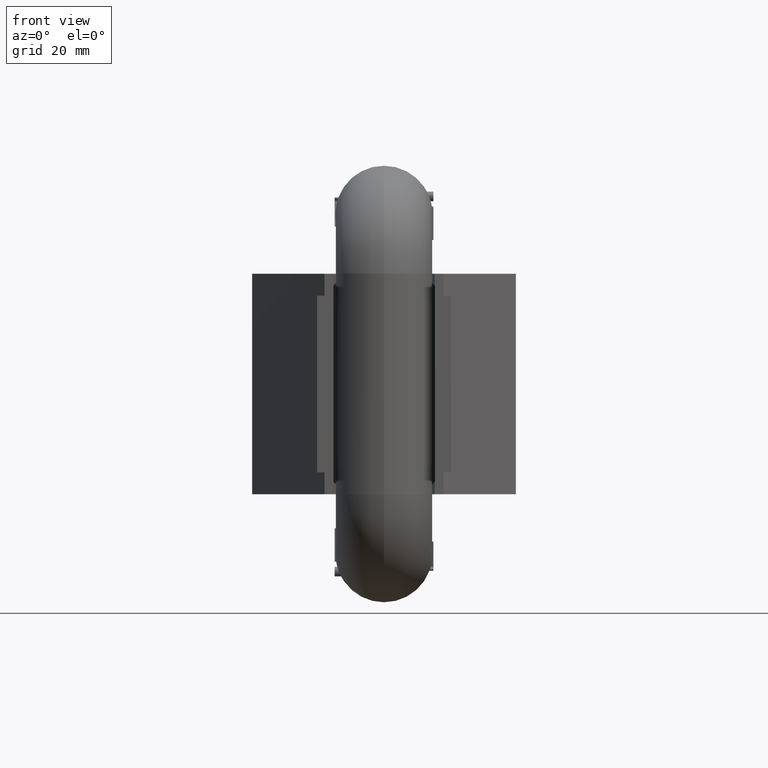
[diagram: clean part render]
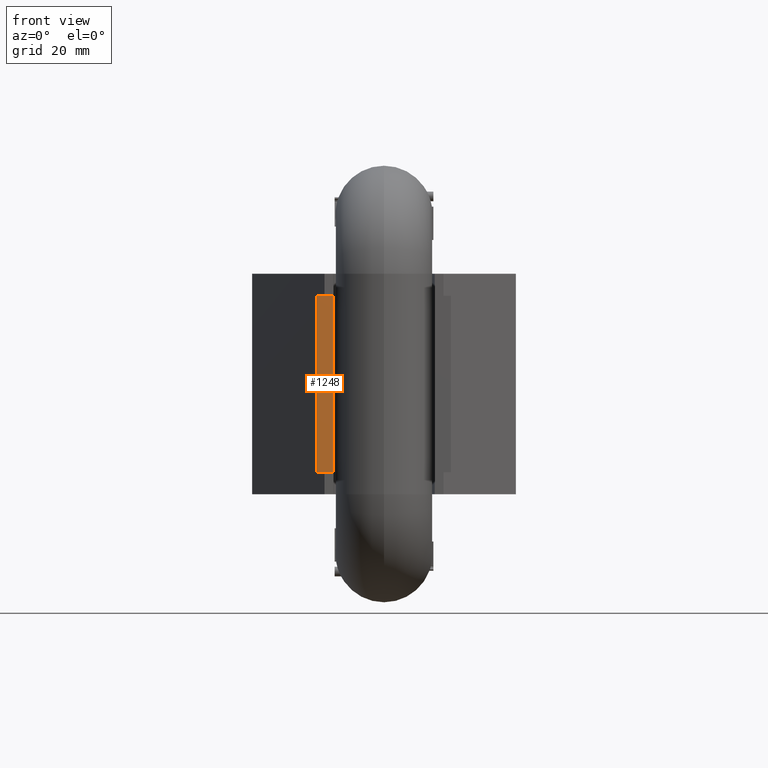
[diagram: same view with one face highlighted and labeled with its STEP entity id]
A machine part, front view. The second image highlights one B-rep face of the part: STEP entity #1248.
In plain terms, the highlighted planar face has unit normal (0, -1, 0).
Its self-contained STEP definition (entity closure, byte-faithful):
#1031=PLANE('',#7598);
#1248=ADVANCED_FACE('',(#1675),#1031,.T.);
#1675=FACE_OUTER_BOUND('',#2063,.T.);
#2063=EDGE_LOOP('',(#2600,#2601,#2602,#2603));
#2600=ORIENTED_EDGE('',*,*,#5468,.F.);
#2601=ORIENTED_EDGE('',*,*,#5469,.T.);
#2602=ORIENTED_EDGE('',*,*,#5470,.T.);
#2603=ORIENTED_EDGE('',*,*,#5471,.T.);
#4744=VERTEX_POINT('',#9306);
#4745=VERTEX_POINT('',#9307);
#4746=VERTEX_POINT('',#9309);
#4747=VERTEX_POINT('',#9311);
#5468=EDGE_CURVE('',#4744,#4745,#6538,.T.);
#5469=EDGE_CURVE('',#4744,#4746,#6539,.T.);
#5470=EDGE_CURVE('',#4746,#4747,#6540,.T.);
#5471=EDGE_CURVE('',#4747,#4745,#6541,.T.);
#6538=LINE('',#9305,#6986);
#6539=LINE('',#9308,#6987);
#6540=LINE('',#9310,#6988);
#6541=LINE('',#9312,#6989);
#6986=VECTOR('',#7973,1.);
#6987=VECTOR('',#7974,1.);
#6988=VECTOR('',#7975,1.);
#6989=VECTOR('',#7976,1.);
#7598=AXIS2_PLACEMENT_3D('',#9313,#7977,#7978);
#7973=DIRECTION('',(1.,3.69695167011451E-16,0.));
#7974=DIRECTION('',(0.,0.,-1.));
#7975=DIRECTION('',(1.,3.69695167011451E-16,0.));
#7976=DIRECTION('',(0.,0.,1.));
#7977=DIRECTION('',(3.69695167011451E-16,-1.,0.));
#7978=DIRECTION('',(1.,3.6949610038306E-16,0.));
#9305=CARTESIAN_POINT('',(30.5,2.,20.));
#9306=CARTESIAN_POINT('',(-15.1781992623545,1.99999999999998,20.));
#9307=CARTESIAN_POINT('',(-11.5,1.99999999999998,20.));
#9308=CARTESIAN_POINT('',(-15.1781992623545,1.99999999999998,20.));
#9309=CARTESIAN_POINT('',(-15.1781992623545,1.99999999999998,-20.));
#9310=CARTESIAN_POINT('',(30.5,2.,-20.));
#9311=CARTESIAN_POINT('',(-11.5,1.99999999999998,-20.));
#9312=CARTESIAN_POINT('',(-11.5,1.99999999999998,25.));
#9313=CARTESIAN_POINT('',(30.5,2.,20.));